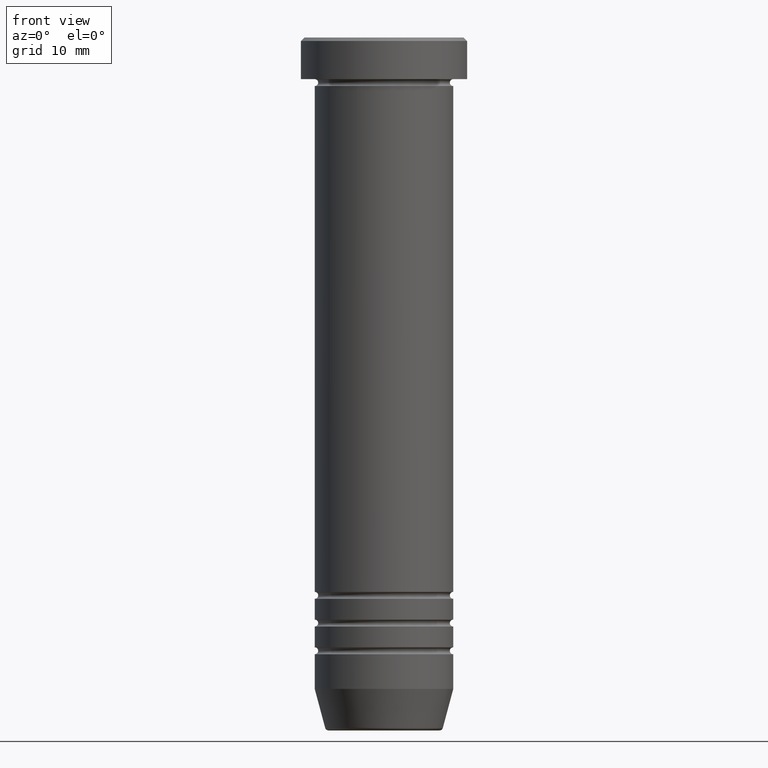
[diagram: clean part render]
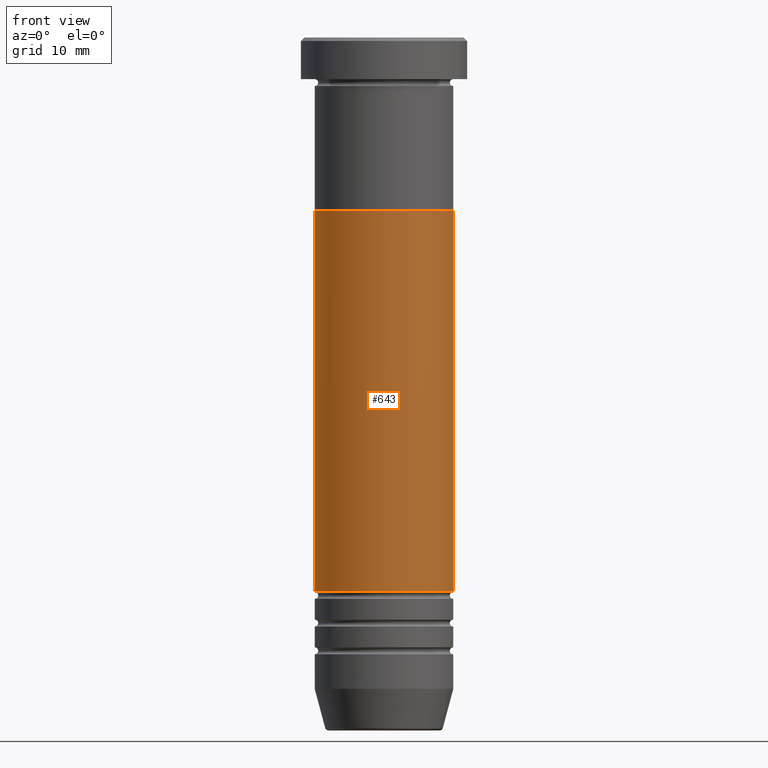
[diagram: same view with one face highlighted and labeled with its STEP entity id]
A machine part, front view. The second image highlights one B-rep face of the part: STEP entity #643.
In plain terms, the highlighted cylindrical surface (partial cylindrical patch) has radius 10 mm, axis along (-0, -0, 1).
Its self-contained STEP definition (entity closure, byte-faithful):
#27 = CIRCLE ( 'NONE', #141, 9.999999999999992895 ) ;
#58 = CARTESIAN_POINT ( 'NONE',  ( 9.999999999999996447, 0.000000000000000000, 0.000000000000000000 ) ) ;
#71 = LINE ( 'NONE', #151, #82 ) ;
#82 = VECTOR ( 'NONE', #646, 1000.000000000000000 ) ;
#141 = AXIS2_PLACEMENT_3D ( 'NONE', #276, #994, #520 ) ;
#148 = DIRECTION ( 'NONE',  ( -0.000000000000000000, -0.000000000000000000, 1.000000000000000000 ) ) ;
#151 = CARTESIAN_POINT ( 'NONE',  ( -9.999999999999996447, 1.224646799147352862E-15, 0.000000000000000000 ) ) ;
#247 = EDGE_CURVE ( 'NONE', #652, #458, #942, .T. ) ;
#266 = DIRECTION ( 'NONE',  ( 1.000000000000000000, 0.000000000000000000, 0.000000000000000000 ) ) ;
#276 = CARTESIAN_POINT ( 'NONE',  ( 0.000000000000000000, 0.000000000000000000, -80.00000000000000000 ) ) ;
#316 = VECTOR ( 'NONE', #148, 1000.000000000000000 ) ;
#354 = DIRECTION ( 'NONE',  ( -0.000000000000000000, -0.000000000000000000, 1.000000000000000000 ) ) ;
#376 = VERTEX_POINT ( 'NONE', #560 ) ;
#397 = CARTESIAN_POINT ( 'NONE',  ( 10.00000000000000000, 0.000000000000000000, -25.00000000000000000 ) ) ;
#444 = CARTESIAN_POINT ( 'NONE',  ( 9.999999999999992895, 0.000000000000000000, -80.00000000000000000 ) ) ;
#458 = VERTEX_POINT ( 'NONE', #397 ) ;
#505 = CYLINDRICAL_SURFACE ( 'NONE', #961, 9.999999999999996447 ) ;
#520 = DIRECTION ( 'NONE',  ( 1.000000000000000000, 0.000000000000000000, 0.000000000000000000 ) ) ;
#560 = CARTESIAN_POINT ( 'NONE',  ( -9.999999999999992895, 1.224646799147352665E-15, -80.00000000000000000 ) ) ;
#606 = CARTESIAN_POINT ( 'NONE',  ( 0.000000000000000000, 0.000000000000000000, 0.000000000000000000 ) ) ;
#610 = DIRECTION ( 'NONE',  ( 1.000000000000000000, 0.000000000000000000, 0.000000000000000000 ) ) ;
#643 = ADVANCED_FACE ( 'NONE', ( #992 ), #505, .T. ) ;
#646 = DIRECTION ( 'NONE',  ( -0.000000000000000000, -0.000000000000000000, 1.000000000000000000 ) ) ;
#652 = VERTEX_POINT ( 'NONE', #685 ) ;
#662 = ORIENTED_EDGE ( 'NONE', *, *, #1054, .F. ) ;
#685 = CARTESIAN_POINT ( 'NONE',  ( -10.00000000000000178, 1.224646799147353454E-15, -25.00000000000000000 ) ) ;
#717 = ORIENTED_EDGE ( 'NONE', *, *, #1012, .T. ) ;
#773 = EDGE_LOOP ( 'NONE', ( #662, #1005, #717, #886 ) ) ;
#774 = VERTEX_POINT ( 'NONE', #444 ) ;
#791 = CARTESIAN_POINT ( 'NONE',  ( 0.000000000000000000, 0.000000000000000000, -25.00000000000000000 ) ) ;
#844 = EDGE_CURVE ( 'NONE', #376, #774, #27, .T. ) ;
#877 = LINE ( 'NONE', #58, #316 ) ;
#886 = ORIENTED_EDGE ( 'NONE', *, *, #247, .F. ) ;
#942 = CIRCLE ( 'NONE', #1038, 10.00000000000000000 ) ;
#947 = DIRECTION ( 'NONE',  ( -0.000000000000000000, -0.000000000000000000, 1.000000000000000000 ) ) ;
#961 = AXIS2_PLACEMENT_3D ( 'NONE', #606, #354, #266 ) ;
#992 = FACE_OUTER_BOUND ( 'NONE', #773, .T. ) ;
#994 = DIRECTION ( 'NONE',  ( -0.000000000000000000, -0.000000000000000000, 1.000000000000000000 ) ) ;
#1005 = ORIENTED_EDGE ( 'NONE', *, *, #844, .T. ) ;
#1012 = EDGE_CURVE ( 'NONE', #774, #458, #877, .T. ) ;
#1038 = AXIS2_PLACEMENT_3D ( 'NONE', #791, #947, #610 ) ;
#1054 = EDGE_CURVE ( 'NONE', #376, #652, #71, .T. ) ;